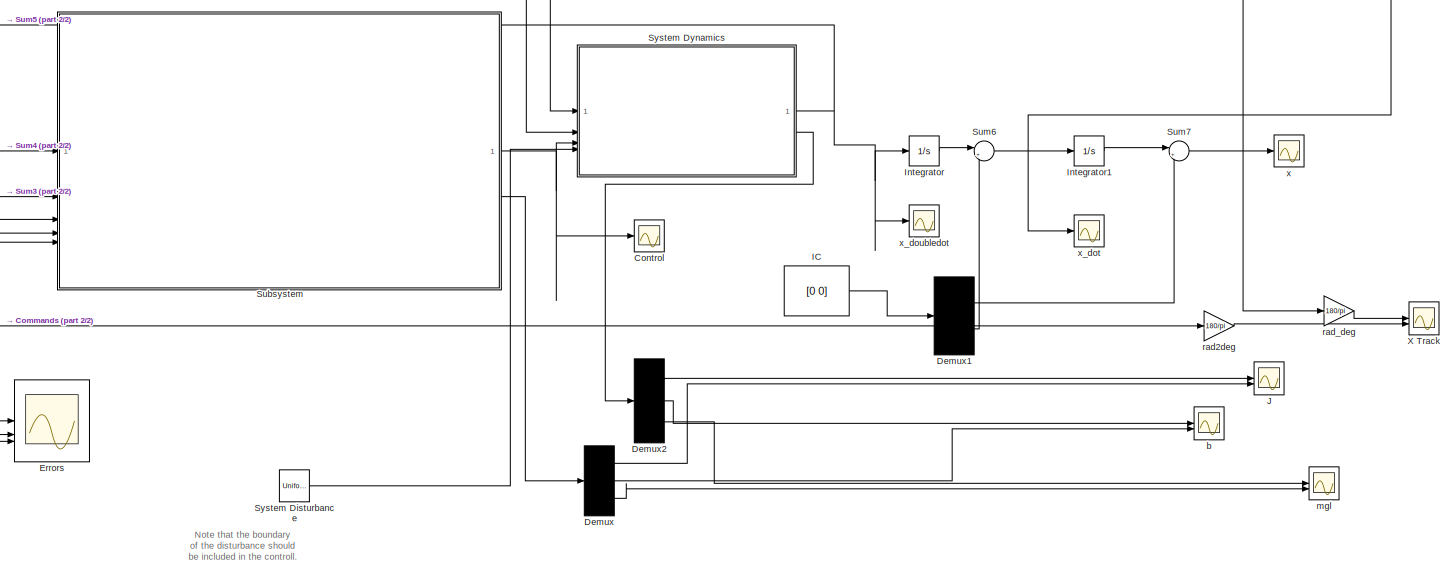
[diagram: root canvas - part 1/2, center side, full height]
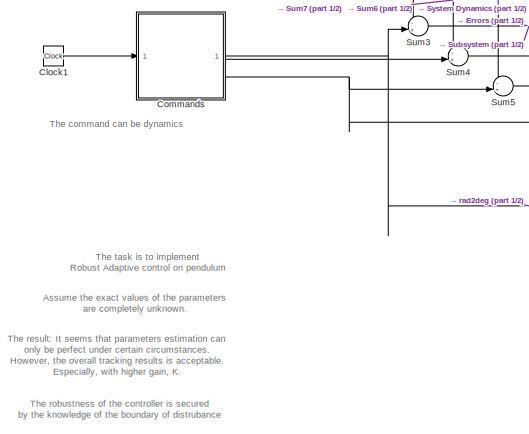
[diagram: root canvas - part 2/2, middle left region]
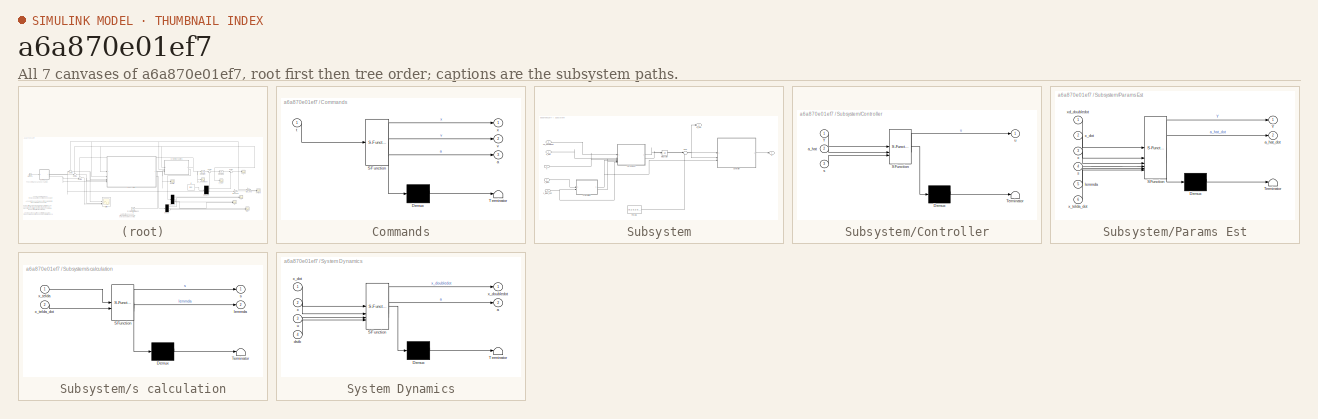
[diagram: thumbnail index - all 7 canvases of the model, root first then tree order]
MODEL slx_a6a870e01ef7
KIND model
CONFIG AbsTol = auto
CONFIG EnableMultiTasking = off
CONFIG FixedStep = auto
CONFIG MaxStep = auto
CONFIG MinStep = auto
CONFIG RelTol = 1e-3
CONFIG SampleTimeConstraint = Unconstrained
CONFIG SolverName = VariableStepAuto
CONFIG StartTime = 0.0
CONFIG StopTime = 60
BLOCK [Clock] Clock1
BLOCK [SubSystem] Commands
  ErrorFcn = Stateflow.Translate.translate
  PermitHierarchicalResolution = ExplicitOnly
  SFBlockType = MATLAB Function
  TreatAsAtomicUnit = on
BLOCK [Demux] Commands/ Demux 
  Outputs = 1
BLOCK [S-Function] Commands/ SFunction 
  EnableBusSupport = on
  FunctionName = sf_sfun
  PortCounts = [1 4]
  SFcnIsStateOwnerBlock = off
  SFunctionDeploymentMode = off
  Tag = Stateflow S-Function 5
BLOCK [Terminator] Commands/ Terminator 
BLOCK [Outport] Commands/a
  Port = 3
BLOCK [Inport] Commands/t
BLOCK [Outport] Commands/v
  Port = 2
BLOCK [Outport] Commands/x
BLOCK [Scope] Control
  Floating = off
  NumInputPorts = 1
  ScopeSpecificationString = Simulink.scopes.TimeScopeBlockCfg('CurrentConfiguration', extmgr.ConfigurationSet(extmgr.Configuration('Core','General UI',true),extmgr.Configuration('Core','Source UI',true),extmgr.Configuration('Sources','WiredSimulink',true,'DataLoggingVariableName','ScopeData4'),extmgr.Configuration('Visuals','Time Domain',true,'SerializedDisplays',{struct('MinYLimReal','-62.5','MaxYLimReal','62.5','YLabelReal...<+1380ch>
BLOCK [Demux] Demux
  DisplayOption = none
  Outputs = 3
BLOCK [Demux] Demux1
  DisplayOption = none
  Outputs = 2
BLOCK [Demux] Demux2
  DisplayOption = none
  Outputs = 3
BLOCK [Scope] Errors
  Floating = off
  NumInputPorts = 3
  ScopeSpecificationString = Simulink.scopes.TimeScopeBlockCfg('CurrentConfiguration', extmgr.ConfigurationSet(extmgr.Configuration('Core','General UI',true),extmgr.Configuration('Core','Source UI',true),extmgr.Configuration('Sources','WiredSimulink',true,'DataLoggingVariableName','ScopeData1'),extmgr.Configuration('Visuals','Time Domain',true,'SerializedDisplays',{struct('MinYLimReal','-40.42206','MaxYLimReal','42.19634','YL...<+1430ch>
BLOCK [Constant] IC
  Value = [0 0]
BLOCK [Integrator] Integrator
BLOCK [Integrator] Integrator1
BLOCK [Scope] J
  Floating = off
  NumInputPorts = 2
  ScopeSpecificationString = Simulink.scopes.TimeScopeBlockCfg('CurrentConfiguration', extmgr.ConfigurationSet(extmgr.Configuration('Core','General UI',true),extmgr.Configuration('Core','Source UI',true),extmgr.Configuration('Sources','WiredSimulink',true,'DataLoggingVariableName','ScopeData1'),extmgr.Configuration('Visuals','Time Domain',true,'SerializedDisplays',{struct('MinYLimReal','-209.22798','MaxYLimReal','131.15142','...<+1419ch>
BLOCK [SubSystem] Subsystem
BLOCK [SubSystem] Subsystem/Controller
  ErrorFcn = Stateflow.Translate.translate
  PermitHierarchicalResolution = ExplicitOnly
  SFBlockType = MATLAB Function
  TreatAsAtomicUnit = on
BLOCK [Demux] Subsystem/Controller/ Demux 
  Outputs = 1
BLOCK [S-Function] Subsystem/Controller/ SFunction 
  EnableBusSupport = on
  FunctionName = sf_sfun
  PortCounts = [3 2]
  SFcnIsStateOwnerBlock = off
  SFunctionDeploymentMode = off
  Tag = Stateflow S-Function 3
BLOCK [Terminator] Subsystem/Controller/ Terminator 
BLOCK [Inport] Subsystem/Controller/Y
BLOCK [Inport] Subsystem/Controller/a_hat
  Port = 2
BLOCK [Inport] Subsystem/Controller/s
  Port = 3
BLOCK [Outport] Subsystem/Controller/u
BLOCK [Integrator] Subsystem/Integrator
BLOCK [Constant] Subsystem/Para IG
  Value = [0.2 0.3 0.3]
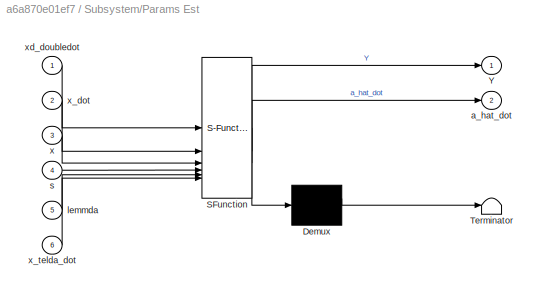
BLOCK [SubSystem] Subsystem/Params Est
  ErrorFcn = Stateflow.Translate.translate
  PermitHierarchicalResolution = ExplicitOnly
  SFBlockType = MATLAB Function
  TreatAsAtomicUnit = on
BLOCK [Demux] Subsystem/Params Est/ Demux 
  Outputs = 1
BLOCK [S-Function] Subsystem/Params Est/ SFunction 
  EnableBusSupport = on
  FunctionName = sf_sfun
  PortCounts = [6 3]
  SFcnIsStateOwnerBlock = off
  SFunctionDeploymentMode = off
  Tag = Stateflow S-Function 2
BLOCK [Terminator] Subsystem/Params Est/ Terminator 
BLOCK [Outport] Subsystem/Params Est/Y
BLOCK [Outport] Subsystem/Params Est/a_hat_dot
  Port = 2
BLOCK [Inport] Subsystem/Params Est/lemmda
  Port = 5
BLOCK [Inport] Subsystem/Params Est/s
  Port = 4
BLOCK [Inport] Subsystem/Params Est/x
  Port = 3
BLOCK [Inport] Subsystem/Params Est/x_dot
  Port = 2
BLOCK [Inport] Subsystem/Params Est/x_telda_dot
  Port = 6
BLOCK [Inport] Subsystem/Params Est/xd_doubledot
BLOCK [Sum] Subsystem/Sum
  Inputs = |++
BLOCK [Outport] Subsystem/a_hat
  Port = 2
BLOCK [SubSystem] Subsystem/s calculation
  ErrorFcn = Stateflow.Translate.translate
  PermitHierarchicalResolution = ExplicitOnly
  SFBlockType = MATLAB Function
  TreatAsAtomicUnit = on
BLOCK [Demux] Subsystem/s calculation/ Demux 
  Outputs = 1
BLOCK [S-Function] Subsystem/s calculation/ SFunction 
  EnableBusSupport = on
  FunctionName = sf_sfun
  PortCounts = [2 3]
  SFcnIsStateOwnerBlock = off
  SFunctionDeploymentMode = off
  Tag = Stateflow S-Function 1
BLOCK [Terminator] Subsystem/s calculation/ Terminator 
BLOCK [Outport] Subsystem/s calculation/lemmda
  Port = 2
BLOCK [Outport] Subsystem/s calculation/s
BLOCK [Inport] Subsystem/s calculation/x_telda
BLOCK [Inport] Subsystem/s calculation/x_telda_dot
  Port = 2
BLOCK [Outport] Subsystem/u
  OutDataTypeStr = double
  PortDimensions = 1
  SignalType = real
BLOCK [Inport] Subsystem/x
  Port = 2
BLOCK [Inport] Subsystem/x_dot
BLOCK [Inport] Subsystem/x_telda
  Port = 3
BLOCK [Inport] Subsystem/x_telda_dot
  Port = 4
BLOCK [Inport] Subsystem/xd_doubledot
  Port = 5
BLOCK [Sum] Sum3
  Inputs = -+|
BLOCK [Sum] Sum4
  Inputs = -+|
BLOCK [Sum] Sum5
  Inputs = -+|
BLOCK [Sum] Sum6
  Inputs = |++
BLOCK [Sum] Sum7
  Inputs = |++
BLOCK [UniformRandomNumber] System Disturbance
  Maximum = 2
  Minimum = -2
  Seed = 7
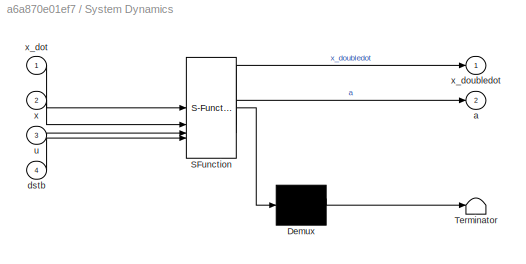
BLOCK [SubSystem] System Dynamics
  ErrorFcn = Stateflow.Translate.translate
  PermitHierarchicalResolution = ExplicitOnly
  SFBlockType = MATLAB Function
  TreatAsAtomicUnit = on
BLOCK [Demux] System Dynamics/ Demux 
  Outputs = 1
BLOCK [S-Function] System Dynamics/ SFunction 
  EnableBusSupport = on
  FunctionName = sf_sfun
  PortCounts = [4 3]
  SFcnIsStateOwnerBlock = off
  SFunctionDeploymentMode = off
  Tag = Stateflow S-Function 4
BLOCK [Terminator] System Dynamics/ Terminator 
BLOCK [Outport] System Dynamics/a
  Port = 2
BLOCK [Inport] System Dynamics/dstb
  Port = 4
BLOCK [Inport] System Dynamics/u
  Port = 3
BLOCK [Inport] System Dynamics/x
  Port = 2
BLOCK [Inport] System Dynamics/x_dot
BLOCK [Outport] System Dynamics/x_doubledot
BLOCK [Scope] X Track
  Floating = off
  NumInputPorts = 2
  ScopeSpecificationString = Simulink.scopes.TimeScopeBlockCfg('CurrentConfiguration', extmgr.ConfigurationSet(extmgr.Configuration('Core','General UI',true),extmgr.Configuration('Core','Source UI',true),extmgr.Configuration('Sources','WiredSimulink',true,'DataLoggingVariableName','ScopeData5'),extmgr.Configuration('Visuals','Time Domain',true,'SerializedDisplays',{struct('MinYLimReal','89.29902','MaxYLimReal','403.5557','YLa...<+1429ch>
BLOCK [Scope] b
  Floating = off
  NumInputPorts = 2
  ScopeSpecificationString = Simulink.scopes.TimeScopeBlockCfg('CurrentConfiguration', extmgr.ConfigurationSet(extmgr.Configuration('Core','General UI',true),extmgr.Configuration('Core','Source UI',true),extmgr.Configuration('Sources','WiredSimulink',true,'DataLoggingVariableName','ScopeData2'),extmgr.Configuration('Visuals','Time Domain',true,'SerializedDisplays',{struct('MinYLimReal','-136.78112','MaxYLimReal','134.04598','...<+1391ch>
BLOCK [Scope] mgl
  Floating = off
  NumInputPorts = 2
  ScopeSpecificationString = Simulink.scopes.TimeScopeBlockCfg('CurrentConfiguration', extmgr.ConfigurationSet(extmgr.Configuration('Core','General UI',true),extmgr.Configuration('Core','Source UI',true),extmgr.Configuration('Sources','WiredSimulink',true,'DataLoggingVariableName','ScopeData3'),extmgr.Configuration('Visuals','Time Domain',true,'SerializedDisplays',{struct('MinYLimReal','-1.86342','MaxYLimReal','19.77078','YLa...<+1381ch>
BLOCK [Gain] rad2deg
  Gain = 180/pi
BLOCK [Gain] rad_deg
  Gain = 180/pi
BLOCK [Scope] x
  Floating = off
  NumInputPorts = 1
  ScopeSpecificationString = Simulink.scopes.TimeScopeBlockCfg('CurrentConfiguration', extmgr.ConfigurationSet(extmgr.Configuration('Core','General UI',true),extmgr.Configuration('Core','Source UI',true),extmgr.Configuration('Sources','WiredSimulink',true,'DataLoggingVariableName','ScopeData4'),extmgr.Configuration('Visuals','Time Domain',true,'SerializedDisplays',{struct('MinYLimReal','-1.33611','MaxYLimReal','7.02501','YLab...<+1391ch>
BLOCK [Scope] x_dot
  Floating = off
  NumInputPorts = 1
  ScopeSpecificationString = Simulink.scopes.TimeScopeBlockCfg('CurrentConfiguration', extmgr.ConfigurationSet(extmgr.Configuration('Core','General UI',true),extmgr.Configuration('Core','Source UI',true),extmgr.Configuration('Sources','WiredSimulink',true,'DataLoggingVariableName','ScopeData5'),extmgr.Configuration('Visuals','Time Domain',true,'SerializedDisplays',{struct('MinYLimReal','-3.97085','MaxYLimReal','6.20102','YLab...<+1363ch>
BLOCK [Scope] x_doubledot
  Floating = off
  NumInputPorts = 1
  ScopeSpecificationString = Simulink.scopes.TimeScopeBlockCfg('CurrentConfiguration', extmgr.ConfigurationSet(extmgr.Configuration('Core','General UI',true),extmgr.Configuration('Core','Source UI',true),extmgr.Configuration('Sources','WiredSimulink',true,'DataLoggingVariableName','ScopeData6'),extmgr.Configuration('Visuals','Time Domain',true,'SerializedDisplays',{struct('MinYLimReal','-10.58107','MaxYLimReal','11.62255','YL...<+1439ch>
ANNOTATION (root): Assume the exact values of the parameters are completely unknown.
ANNOTATION (root): Note that the boundary of the disturbance should be included in the controll.
ANNOTATION (root): The command can be dynamics
ANNOTATION (root): The result: It seems that parameters estimation can only be perfect under certain circumstances. However, the overall tracking results is acceptable. Especially, with higher gain, K.
ANNOTATION (root): The robustness of the controller is secured by the knowledge of the boundary of distrubance
ANNOTATION (root): The task is to implement Robust Adaptive control on pendulum
LINE Clock1:1 -> Commands:1
NET Commands:1 -> Sum3:2, rad2deg:1
LINE Commands:2 -> Sum4:2
NET Commands:3 -> Subsystem:5, Sum5:2
LINE Demux1:1 -> Sum7:2
LINE Demux1:2 -> Sum6:2
LINE Demux2:1 -> J:1
LINE Demux2:2 -> b:1
LINE Demux2:3 -> mgl:1
LINE Demux:1 -> J:2
LINE Demux:2 -> b:2
LINE Demux:3 -> mgl:2
LINE IC:1 -> Demux1:1
LINE Integrator1:1 -> Sum7:1
LINE Integrator:1 -> Sum6:1
LINE Subsystem/Controller:1 -> Subsystem/u:1
LINE Subsystem/Integrator:1 -> Subsystem/Sum:1
LINE Subsystem/Para IG:1 -> Subsystem/Sum:2
LINE Subsystem/Params Est:1 -> Subsystem/Controller:1
LINE Subsystem/Params Est:2 -> Subsystem/Integrator:1
NET Subsystem/Sum:1 -> Subsystem/Controller:2, Subsystem/a_hat:1
NET Subsystem/s calculation:1 -> Subsystem/Controller:3, Subsystem/Params Est:4
LINE Subsystem/s calculation:2 -> Subsystem/Params Est:5
LINE Subsystem/x:1 -> Subsystem/Params Est:3
LINE Subsystem/x_dot:1 -> Subsystem/Params Est:2
LINE Subsystem/x_telda:1 -> Subsystem/s calculation:1
NET Subsystem/x_telda_dot:1 -> Subsystem/Params Est:6, Subsystem/s calculation:2
LINE Subsystem/xd_doubledot:1 -> Subsystem/Params Est:1
NET Subsystem:1 -> Control:1, System Dynamics:3
LINE Subsystem:2 -> Demux:1
NET Sum3:1 -> Errors:1, Subsystem:3
NET Sum4:1 -> Errors:2, Subsystem:4
LINE Sum5:1 -> Errors:3
NET Sum6:1 -> Integrator1:1, Subsystem:1, Sum4:1, System Dynamics:1, x_dot:1
NET Sum7:1 -> Subsystem:2, Sum3:1, System Dynamics:2, rad_deg:1, x:1
LINE System Disturbance:1 -> System Dynamics:4
NET System Dynamics:1 -> Integrator:1, Sum5:1, x_doubledot:1
LINE System Dynamics:2 -> Demux2:1
LINE rad2deg:1 -> X Track:2
LINE rad_deg:1 -> X Track:1
note: NET lines group one-source signal fan-out (src -> all destinations, sorted); 1:1 wires keep LINE
CHART Subsystem/s calculation states=1 transitions=1
  STATE_LABEL 'eML_blk_kernel()'
  STATE_LABEL 'SCRIPT:\nfunction [s,lemmda]= S(x_telda,x_telda_dot)\n%%% Parameters Define\nlemmda = 5.3;%%%should be greater than 0\ns = x_telda_dot + lemmda*x_telda;\nend\n'
CHART Subsystem/Params Est states=1 transitions=1
  STATE_LABEL 'eML_blk_kernel()'
  STATE_LABEL 'SCRIPT:\nfunction [Y,a_hat_dot]= fcn(xd_doubledot,x_dot,x,s,lemmda,x_telda_dot)\n%%% Parameters Defind\nP = diag([2 2 0.3]);  %%% Postive Diagnoal\nUno = xd_doubledot + lemmda*x_telda_dot;\nDos = x_dot*abs(x_dot);\nTres = sin(x);\n\nY = [Uno Dos Tres];\n\na_hat_dot = s*Y*(P);\n\n% a1_new = a_hat_dot(1);%%    J\n% a2_new = a_hat_dot(2);%%    b\n% a3_new = a_hat_dot(3);%%    mgl\nend\n\n\n'
CHART Subsystem/Controller states=1 transitions=1
  STATE_LABEL 'eML_blk_kernel()'
  STATE_LABEL 'SCRIPT:\nfunction u = fcn(Y,a_hat,s)\n%%% Parameters define\nK = 5;    %%% K>0, 5 is the sweetspot,\n          %%% and this value manefasts the importance of dstb supression\nR = 50;     %%% Restriction\n%%% K should be great enough for rapid tracking\nc = 2;  %%% Should be consistent with sytem dynamics\nif(s==0)    %%% Avoid singularity\n    u = Y*a_hat;\nelse\n     u = Y*a_hat + K*s + c*s/abs(s); \n     %u...<+215ch>'
CHART System Dynamics states=1 transitions=1
  STATE_LABEL 'eML_blk_kernel()'
  STATE_LABEL 'SCRIPT:\nfunction [x_doubledot, a]= fcn(x_dot,x,u,dstb)\n%%% System Parameters definition:\n%%% J,b,mgl should be reasonable for a inverted pendulum\nJ = 5;\nb = 2;\nmgl = 7.5;\na = [J b mgl];  %%%output for visual comparision\n%%% Dynamics Calculation\nx_doubledot = (u - b*x_dot*abs(x_dot) - mgl*sin(x) - dstb)/J;\nend'
CHART Commands states=1 transitions=1
  STATE_LABEL 'eML_blk_kernel()'
  STATE_LABEL 'SCRIPT:\nfunction [x,v,a]= Command_Generator(t)\n%%% The function is to generate tracking commands for \n%%% the inverted pendulum problem\n\n%%% Let the pendulum ocillates near upper eq point\n%%% Parameters Define:\nfreq = 0.1;\nomega = 2*pi*freq;\nA = 0.1*pi;\n%%% Command\n%%% Sinusoidal Command\nx = pi + A*sin(omega*t);\nv = A*omega*cos(omega*t);\na = -A*(omega^2)*sin(omega*t);\n\n%%% Step Command\n% x = pi;\n%...<+20ch>'
CHART  states=0 transitions=0
CHART  states=0 transitions=0
CHART  states=0 transitions=0
CHART  states=0 transitions=0
CHART  states=0 transitions=0
